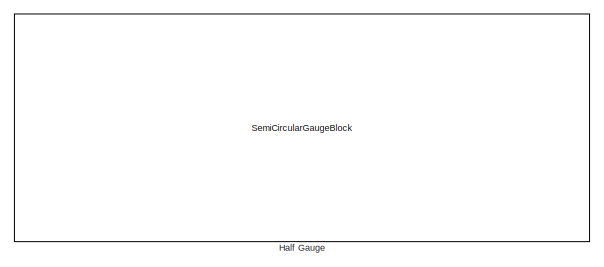
[diagram: root canvas - part 1/3, top center region]
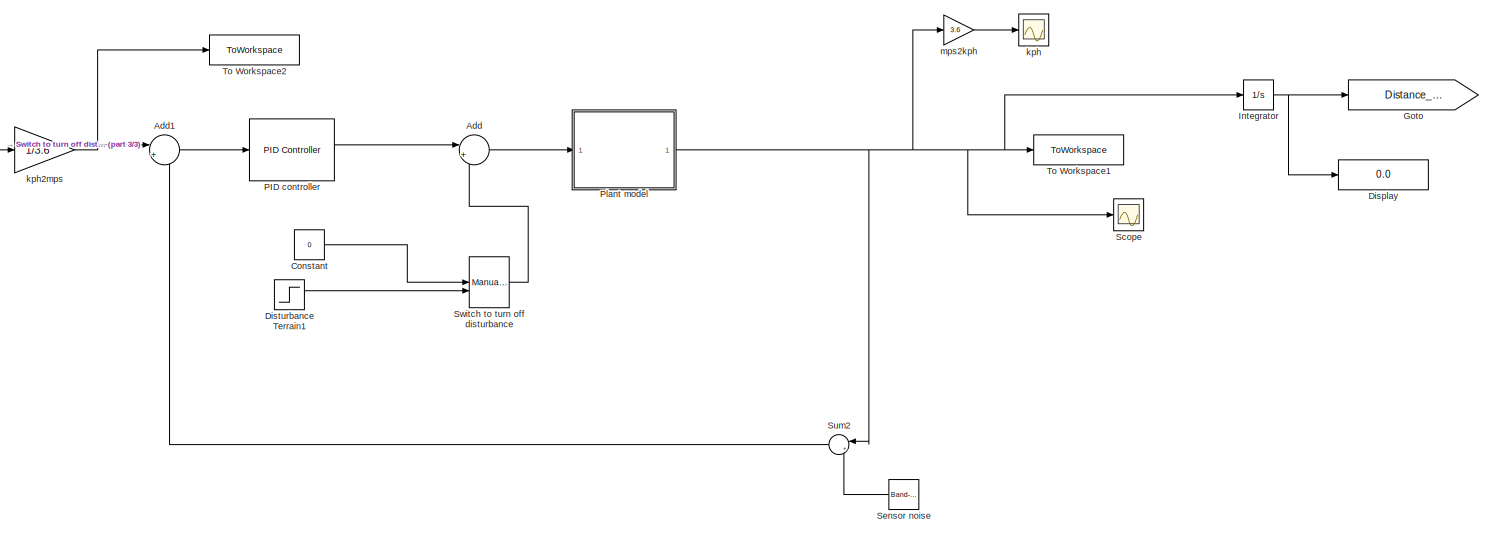
[diagram: root canvas - part 2/3, full width, bottom band]
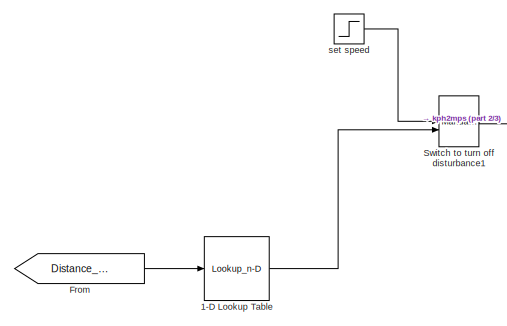
[diagram: root canvas - part 3/3, middle left region]
MODEL slx_802e5234435c
KIND model
CONFIG AbsTol = auto
CONFIG EnableMultiTasking = off
CONFIG FixedStep = 0.1
CONFIG InitFcn = week2_cruise_control
CONFIG MaxStep = auto
CONFIG MinStep = auto
CONFIG RelTol = 1e-3
CONFIG SampleTimeConstraint = Unconstrained
CONFIG SolverName = VariableStepAuto
CONFIG StartTime = 0.0
CONFIG StopFcn = post_simulation_plots
CONFIG StopTime = 250
BLOCK [Lookup_n-D] 1-D Lookup Table
  BreakpointsForDimension1 = distance_travel
  InputPortMap = u0
  InternalRulePriority = Speed
  InterpMethod = Flat
  NumberOfTableDimensions = 1
  Ports = [1, 1]
  RndMeth = Simplest
  Table = speed_limit
BLOCK [Sum] Add
  Inputs = |+-
  Ports = [2, 1]
BLOCK [Sum] Add1
  Inputs = |+-
  Ports = [2, 1]
BLOCK [Constant] Constant
  Value = 0
BLOCK [Display] Display
  Decimation = 1
  Ports = [1]
BLOCK [Step] Disturbance Terrain1
  After = m*9.81*sin(pi/45)
  SampleTime = 0
  Time = 100
BLOCK [From] From
  GotoTag = Distance_travel
BLOCK [Goto] Goto
  GotoTag = Distance_travel
BLOCK [SemiCircularGaugeBlock] Half Gauge
  LabelPosition = Hide
  ScaleMax = 220
  TickInterval = 25
BLOCK [Integrator] Integrator
  Ports = [1, 1]
BLOCK [Reference] PID controller  REF=pid_lib/PID Controller
  Ports = [1, 1]
  SourceBlock = pid_lib/PID Controller
  SourceProductBaseCode = SL
  SourceType = PID 1dof
BLOCK [ModelReference] Plant model
  ModelNameDialog = week2_linearplantmodel.slx
  ModelReferenceVersion = 1.2
  Ports = [1, 1]
BLOCK [Scope] Scope
  Floating = off
  NumInputPorts = 1
  Ports = [1]
  ScopeSpecificationString = Simulink.scopes.TimeScopeBlockCfg('CurrentConfiguration', extmgr.ConfigurationSet(extmgr.Configuration('Core','General UI',true),extmgr.Configuration('Core','Source UI',true),extmgr.Configuration('Sources','WiredSimulink',true,'DataLoggingVariableName','ScopeData1'),extmgr.Configuration('Visuals','Time Domain',true,'SerializedDisplays',{struct('MinYLimReal','-1.46251','MaxYLimReal','13.16256','YLa...<+1399ch>
BLOCK [Reference] Sensor noise  REF=simulink/Sources/Band-Limited
White Noise
  Ports = [0, 1]
  SourceBlock = simulink/Sources/Band-Limited\nWhite Noise
  SourceProductBaseCode = SL
  SourceType = Band-Limited White Noise.
BLOCK [Sum] Sum2
  Inputs = |++
  Ports = [2, 1]
BLOCK [ManualSwitch] Switch to turn off disturbance
  CurrentSetting = 0
BLOCK [ManualSwitch] Switch to turn off disturbance1
  CurrentSetting = 0
BLOCK [ToWorkspace] To Workspace1
  FixptAsFi = on
  MaxDataPoints = inf
  Ports = [1]
  SampleTime = -1
  SaveFormat = Timeseries
  VariableName = output_v
BLOCK [ToWorkspace] To Workspace2
  FixptAsFi = on
  MaxDataPoints = inf
  Ports = [1]
  SampleTime = -1
  SaveFormat = Timeseries
  VariableName = input_u
BLOCK [Scope] kph
  Floating = off
  NumInputPorts = 1
  Ports = [1]
  ScopeSpecificationString = Simulink.scopes.TimeScopeBlockCfg('CurrentConfiguration', extmgr.ConfigurationSet(extmgr.Configuration('Core','General UI',true),extmgr.Configuration('Core','Source UI',true),extmgr.Configuration('Sources','WiredSimulink',true),extmgr.Configuration('Visuals','Time Domain',true,'SerializedDisplays',{struct('MinYLimReal','-5.58291','MaxYLimReal','49.84733','YLabelReal','','MinYLimMag','0.00000','Max...<+1331ch>
BLOCK [Gain] kph2mps
  Gain = 1/3.6
BLOCK [Gain] mps2kph
  Gain = 3.6
BLOCK [Step] set speed
  After = v_set_speed
  SampleTime = 0
LINE 1-D Lookup Table:1 -> Switch to turn off disturbance1:2
LINE Add1:1 -> PID controller:1
LINE Add:1 -> Plant model:1
LINE Constant:1 -> Switch to turn off disturbance:1
LINE Disturbance Terrain1:1 -> Switch to turn off disturbance:2
LINE From:1 -> 1-D Lookup Table:1
NET Integrator:1 -> Display:1, Goto:1
LINE PID controller:1 -> Add:1
NET Plant model:1 -> Integrator:1, Scope:1, Sum2:1, To Workspace1:1, mps2kph:1
LINE Sensor noise:1 -> Sum2:2
LINE Sum2:1 -> Add1:2
LINE Switch to turn off disturbance1:1 -> kph2mps:1
LINE Switch to turn off disturbance:1 -> Add:2
NET kph2mps:1 -> Add1:1, To Workspace2:1
LINE mps2kph:1 -> kph:1
LINE set speed:1 -> Switch to turn off disturbance1:1
note: NET lines group one-source signal fan-out (src -> all destinations, sorted); 1:1 wires keep LINE
